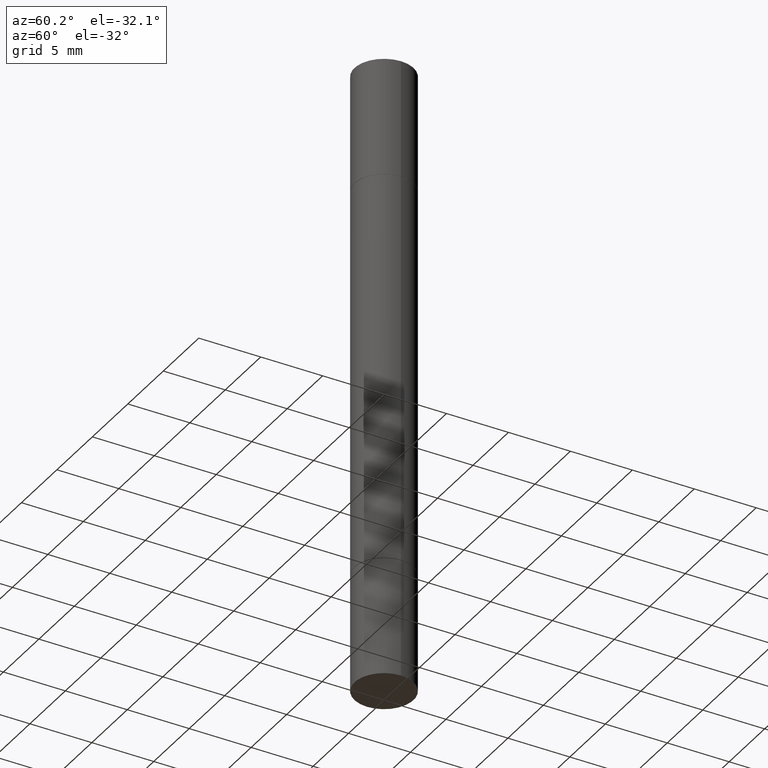
[diagram: clean part render]
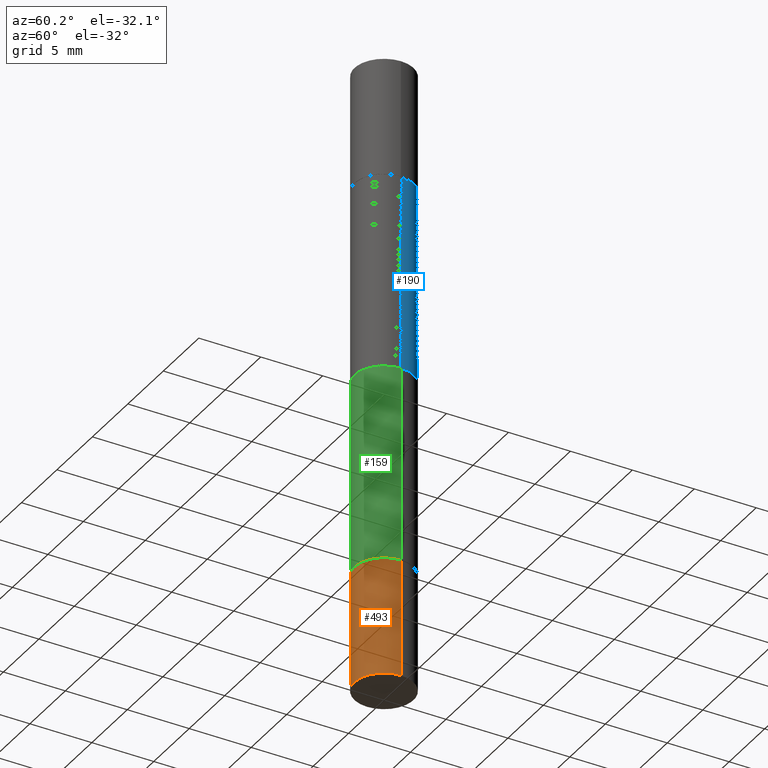
[diagram: same view with three faces highlighted in distinct colors, each labeled with its STEP entity id]
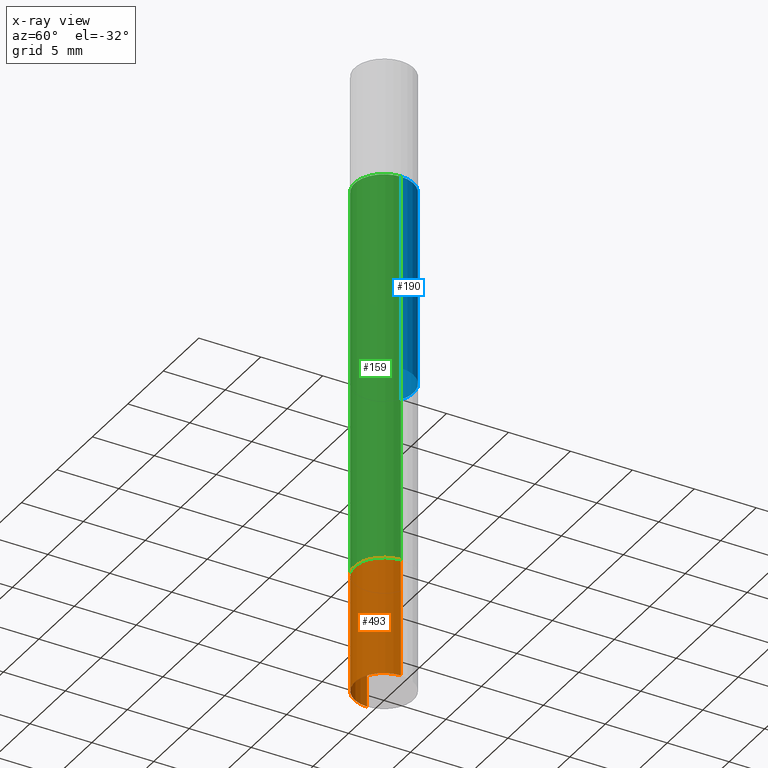
[diagram: x-ray of the same camera — body ghosted, the three highlighted faces saturated]
A machine part, auxiliary view with three faces highlighted in distinct colors.
The next image is the same camera in x-ray (body ghosted, the three faces saturated) — at least one of them is partly hidden behind the body in this view.
Their STEP definitions:

[orange] entity #493 — the highlighted cylindrical surface (edge-blend (fillet) strip) has radius 2.3813 mm, axis along (-0, 0, 1).
#1 = AXIS2_PLACEMENT_3D ( 'NONE', #356, #513, #463 ) ;
#11 = EDGE_CURVE ( 'NONE', #182, #301, #95, .T. ) ;
#49 = CARTESIAN_POINT ( 'NONE',  ( -0.09375000000000001388, -5.662176111878106581E-15, -1.625000000000000000 ) ) ;
#92 = EDGE_CURVE ( 'NONE', #301, #108, #378, .T. ) ;
#95 = CIRCLE ( 'NONE', #1, 0.09375000000000001388 ) ;
#105 = CARTESIAN_POINT ( 'NONE',  ( -0.09375000000000001388, 6.661338147750940229E-16, -4.611501647113973995E-30 ) ) ;
#108 = VERTEX_POINT ( 'NONE', #277 ) ;
#152 = VECTOR ( 'NONE', #576, 39.37007874015748143 ) ;
#182 = VERTEX_POINT ( 'NONE', #533 ) ;
#194 = ORIENTED_EDGE ( 'NONE', *, *, #354, .F. ) ;
#196 = AXIS2_PLACEMENT_3D ( 'NONE', #423, #626, #617 ) ;
#200 = CARTESIAN_POINT ( 'NONE',  ( 0.09375000000000001388, -7.637615428719378669E-15, -2.000000000000000000 ) ) ;
#264 = LINE ( 'NONE', #105, #152 ) ;
#277 = CARTESIAN_POINT ( 'NONE',  ( 0.09375000000000001388, -6.328309926653198928E-15, -1.625000000000000000 ) ) ;
#301 = VERTEX_POINT ( 'NONE', #200 ) ;
#303 = CIRCLE ( 'NONE', #196, 0.09375000000000001388 ) ;
#305 = DIRECTION ( 'NONE',  ( 1.000000000000000000, -6.982962677686265922E-15, 4.876176775795935793E-29 ) ) ;
#354 = EDGE_CURVE ( 'NONE', #459, #108, #303, .T. ) ;
#356 = CARTESIAN_POINT ( 'NONE',  ( 4.890937612370273194E-29, -6.982962677686291165E-15, -2.000000000000000000 ) ) ;
#360 = ORIENTED_EDGE ( 'NONE', *, *, #11, .T. ) ;
#378 = LINE ( 'NONE', #601, #481 ) ;
#384 = EDGE_CURVE ( 'NONE', #182, #459, #264, .T. ) ;
#403 = EDGE_LOOP ( 'NONE', ( #529, #360, #443, #194 ) ) ;
#416 = DIRECTION ( 'NONE',  ( -2.445468806185136597E-29, 3.491481338843145583E-15, 1.000000000000000000 ) ) ;
#421 = CYLINDRICAL_SURFACE ( 'NONE', #629, 0.09375000000000001388 ) ;
#423 = CARTESIAN_POINT ( 'NONE',  ( 3.973886810050846970E-29, -5.673657175620112213E-15, -1.625000000000000000 ) ) ;
#443 = ORIENTED_EDGE ( 'NONE', *, *, #92, .T. ) ;
#459 = VERTEX_POINT ( 'NONE', #49 ) ;
#463 = DIRECTION ( 'NONE',  ( 1.000000000000000000, -6.982962677686261189E-15, 0.000000000000000000 ) ) ;
#481 = VECTOR ( 'NONE', #547, 39.37007874015748143 ) ;
#493 = ADVANCED_FACE ( 'NONE', ( #572 ), #421, .T. ) ;
#513 = DIRECTION ( 'NONE',  ( -2.445468806185136597E-29, 3.491481338843145583E-15, 1.000000000000000000 ) ) ;
#526 = CARTESIAN_POINT ( 'NONE',  ( 0.000000000000000000, 0.000000000000000000, 0.000000000000000000 ) ) ;
#529 = ORIENTED_EDGE ( 'NONE', *, *, #384, .F. ) ;
#533 = CARTESIAN_POINT ( 'NONE',  ( -0.09375000000000001388, -5.662176111878106581E-15, -2.000000000000000000 ) ) ;
#547 = DIRECTION ( 'NONE',  ( -2.445468806185136877E-29, 3.491481338843145188E-15, 1.000000000000000000 ) ) ;
#572 = FACE_OUTER_BOUND ( 'NONE', #403, .T. ) ;
#576 = DIRECTION ( 'NONE',  ( -2.445468806185136877E-29, 3.491481338843145188E-15, 1.000000000000000000 ) ) ;
#601 = CARTESIAN_POINT ( 'NONE',  ( 0.09375000000000001388, -6.546527510330875041E-16, 4.571415727308690506E-30 ) ) ;
#617 = DIRECTION ( 'NONE',  ( 1.000000000000000000, -6.982962677686261189E-15, 0.000000000000000000 ) ) ;
#626 = DIRECTION ( 'NONE',  ( -2.445468806185136597E-29, 3.491481338843145583E-15, 1.000000000000000000 ) ) ;
#629 = AXIS2_PLACEMENT_3D ( 'NONE', #526, #416, #305 ) ;

[blue] entity #190 — the highlighted cylindrical surface (edge-blend (fillet) strip) has radius 2.3812 mm, axis along (-0, -0, -1).
#28 = CARTESIAN_POINT ( 'NONE',  ( 2.445468806185136317E-29, -3.491481338843145188E-15, -0.9999999999999998890 ) ) ;
#52 = DIRECTION ( 'NONE',  ( 1.000000000000000000, -6.982962677686269866E-15, 0.000000000000000000 ) ) ;
#53 = AXIS2_PLACEMENT_3D ( 'NONE', #386, #115, #52 ) ;
#64 = CARTESIAN_POINT ( 'NONE',  ( 3.971441341244661927E-29, -1.311917722034852351E-15, -0.3759999999999997788 ) ) ;
#88 = DIRECTION ( 'NONE',  ( 1.000000000000000000, -6.982962677686265922E-15, 0.000000000000000000 ) ) ;
#104 = AXIS2_PLACEMENT_3D ( 'NONE', #28, #284, #500 ) ;
#109 = CARTESIAN_POINT ( 'NONE',  ( 0.09374999999999990286, -7.639024501427984975E-15, -1.999999999999999778 ) ) ;
#115 = DIRECTION ( 'NONE',  ( -2.445468806185136597E-29, -3.492890411551752677E-15, -1.000000000000000000 ) ) ;
#148 = VERTEX_POINT ( 'NONE', #327 ) ;
#171 = LINE ( 'NONE', #430, #251 ) ;
#174 = CYLINDRICAL_SURFACE ( 'NONE', #53, 0.09374999999999990286 ) ;
#190 = ADVANCED_FACE ( 'NONE', ( #638 ), #174, .T. ) ;
#195 = EDGE_CURVE ( 'NONE', #501, #588, #171, .T. ) ;
#201 = EDGE_CURVE ( 'NONE', #243, #501, #577, .T. ) ;
#234 = ORIENTED_EDGE ( 'NONE', *, *, #195, .F. ) ;
#243 = VERTEX_POINT ( 'NONE', #508 ) ;
#251 = VECTOR ( 'NONE', #331, 39.37007874015748143 ) ;
#263 = VECTOR ( 'NONE', #590, 39.37007874015748143 ) ;
#284 = DIRECTION ( 'NONE',  ( -0.000000000000000000, -3.492185875197449130E-15, -1.000000000000000000 ) ) ;
#311 = EDGE_CURVE ( 'NONE', #588, #148, #351, .T. ) ;
#325 = ORIENTED_EDGE ( 'NONE', *, *, #201, .F. ) ;
#327 = CARTESIAN_POINT ( 'NONE',  ( 0.09374999999999990286, -3.056352281472084301E-15, -0.9999999999999998890 ) ) ;
#330 = LINE ( 'NONE', #109, #263 ) ;
#331 = DIRECTION ( 'NONE',  ( -2.445468806185136877E-29, -3.492890411551753071E-15, -1.000000000000000000 ) ) ;
#351 = CIRCLE ( 'NONE', #104, 0.09374999999999990286 ) ;
#368 = CARTESIAN_POINT ( 'NONE',  ( -0.09375000000000002776, -6.687460347437705766E-16, -0.3759999999999997788 ) ) ;
#375 = ORIENTED_EDGE ( 'NONE', *, *, #607, .T. ) ;
#385 = CARTESIAN_POINT ( 'NONE',  ( -0.09374999999999990286, -1.758527843147917488E-15, -0.9999999999999998890 ) ) ;
#386 = CARTESIAN_POINT ( 'NONE',  ( 0.000000000000000000, -6.984371750394897471E-15, -1.999999999999999778 ) ) ;
#430 = CARTESIAN_POINT ( 'NONE',  ( -0.09374999999999990286, -6.341200063103816387E-15, -1.999999999999999778 ) ) ;
#500 = DIRECTION ( 'NONE',  ( 0.000000000000000000, 1.000000000000000000, -2.913971193241883922E-15 ) ) ;
#501 = VERTEX_POINT ( 'NONE', #368 ) ;
#508 = CARTESIAN_POINT ( 'NONE',  ( 0.09375000000000002776, -1.966570473067939461E-15, -0.3759999999999997788 ) ) ;
#517 = AXIS2_PLACEMENT_3D ( 'NONE', #64, #634, #88 ) ;
#549 = EDGE_LOOP ( 'NONE', ( #234, #325, #375, #609 ) ) ;
#577 = CIRCLE ( 'NONE', #517, 0.09375000000000002776 ) ;
#588 = VERTEX_POINT ( 'NONE', #385 ) ;
#590 = DIRECTION ( 'NONE',  ( -2.445468806185136877E-29, -3.492890411551753071E-15, -1.000000000000000000 ) ) ;
#607 = EDGE_CURVE ( 'NONE', #243, #148, #330, .T. ) ;
#609 = ORIENTED_EDGE ( 'NONE', *, *, #311, .F. ) ;
#634 = DIRECTION ( 'NONE',  ( 2.445468806185136597E-29, 3.492890411551752677E-15, 1.000000000000000000 ) ) ;
#638 = FACE_OUTER_BOUND ( 'NONE', #549, .T. ) ;

[green] entity #159 — the highlighted cylindrical surface (edge-blend (fillet) strip) has radius 2.3812 mm, axis along (-0, -0, -1).
#21 = FACE_OUTER_BOUND ( 'NONE', #346, .T. ) ;
#23 = CARTESIAN_POINT ( 'NONE',  ( 0.09375000000000002776, -6.324818445314356710E-15, -1.623999999999999888 ) ) ;
#54 = EDGE_CURVE ( 'NONE', #510, #250, #137, .T. ) ;
#130 = VERTEX_POINT ( 'NONE', #168 ) ;
#133 = EDGE_CURVE ( 'NONE', #130, #250, #542, .T. ) ;
#137 = CIRCLE ( 'NONE', #524, 0.09375000000000002776 ) ;
#155 = CARTESIAN_POINT ( 'NONE',  ( -0.09375000000000002776, -2.848309651552061343E-15, -1.623999999999999888 ) ) ;
#159 = ADVANCED_FACE ( 'NONE', ( #21 ), #434, .T. ) ;
#168 = CARTESIAN_POINT ( 'NONE',  ( 0.09375000000000002776, -1.966570473067939461E-15, -0.3759999999999997788 ) ) ;
#203 = CARTESIAN_POINT ( 'NONE',  ( -0.09375000000000002776, -6.687460347437705766E-16, -0.3759999999999997788 ) ) ;
#207 = AXIS2_PLACEMENT_3D ( 'NONE', #261, #528, #212 ) ;
#212 = DIRECTION ( 'NONE',  ( 1.000000000000000000, -6.982962677686265922E-15, 0.000000000000000000 ) ) ;
#214 = VECTOR ( 'NONE', #645, 39.37007874015748143 ) ;
#218 = LINE ( 'NONE', #630, #472 ) ;
#225 = ORIENTED_EDGE ( 'NONE', *, *, #537, .T. ) ;
#232 = DIRECTION ( 'NONE',  ( -2.445468806185136597E-29, -3.492890411551752677E-15, -1.000000000000000000 ) ) ;
#250 = VERTEX_POINT ( 'NONE', #23 ) ;
#261 = CARTESIAN_POINT ( 'NONE',  ( 3.971441341244661927E-29, -1.311917722034852351E-15, -0.3759999999999997788 ) ) ;
#271 = CIRCLE ( 'NONE', #207, 0.09375000000000002776 ) ;
#343 = ORIENTED_EDGE ( 'NONE', *, *, #133, .F. ) ;
#346 = EDGE_LOOP ( 'NONE', ( #379, #225, #657, #343 ) ) ;
#372 = AXIS2_PLACEMENT_3D ( 'NONE', #544, #232, #445 ) ;
#374 = DIRECTION ( 'NONE',  ( -2.445468806185136877E-29, -3.492890411551753071E-15, -1.000000000000000000 ) ) ;
#379 = ORIENTED_EDGE ( 'NONE', *, *, #431, .F. ) ;
#427 = VERTEX_POINT ( 'NONE', #203 ) ;
#431 = EDGE_CURVE ( 'NONE', #427, #130, #271, .T. ) ;
#434 = CYLINDRICAL_SURFACE ( 'NONE', #372, 0.09374999999999990286 ) ;
#441 = CARTESIAN_POINT ( 'NONE',  ( 0.09374999999999990286, -7.639024501427984975E-15, -1.999999999999999778 ) ) ;
#445 = DIRECTION ( 'NONE',  ( 1.000000000000000000, -6.982962677686269866E-15, 0.000000000000000000 ) ) ;
#472 = VECTOR ( 'NONE', #374, 39.37007874015748143 ) ;
#476 = CARTESIAN_POINT ( 'NONE',  ( 3.971441341244661927E-29, -5.670165694281268417E-15, -1.623999999999999888 ) ) ;
#510 = VERTEX_POINT ( 'NONE', #155 ) ;
#524 = AXIS2_PLACEMENT_3D ( 'NONE', #476, #678, #568 ) ;
#528 = DIRECTION ( 'NONE',  ( 2.445468806185136597E-29, 3.492890411551752677E-15, 1.000000000000000000 ) ) ;
#537 = EDGE_CURVE ( 'NONE', #427, #510, #218, .T. ) ;
#542 = LINE ( 'NONE', #441, #214 ) ;
#544 = CARTESIAN_POINT ( 'NONE',  ( 0.000000000000000000, -6.984371750394897471E-15, -1.999999999999999778 ) ) ;
#568 = DIRECTION ( 'NONE',  ( 1.000000000000000000, -6.982962677686270655E-15, 0.000000000000000000 ) ) ;
#630 = CARTESIAN_POINT ( 'NONE',  ( -0.09374999999999990286, -6.341200063103816387E-15, -1.999999999999999778 ) ) ;
#645 = DIRECTION ( 'NONE',  ( -2.445468806185136877E-29, -3.492890411551753071E-15, -1.000000000000000000 ) ) ;
#657 = ORIENTED_EDGE ( 'NONE', *, *, #54, .T. ) ;
#678 = DIRECTION ( 'NONE',  ( -2.445468806185136597E-29, 3.491481338843145583E-15, 1.000000000000000000 ) ) ;